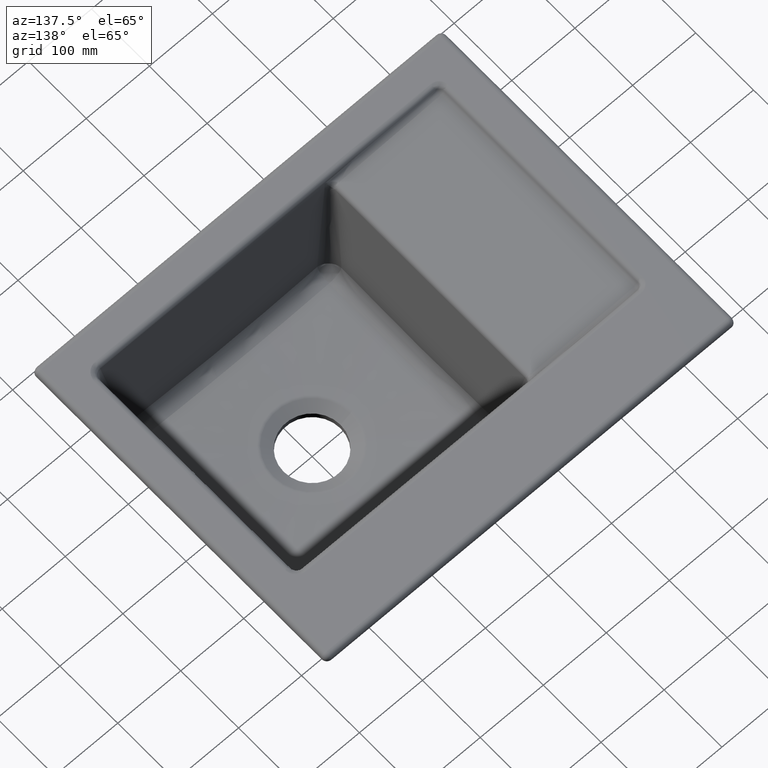
[diagram: clean part render]
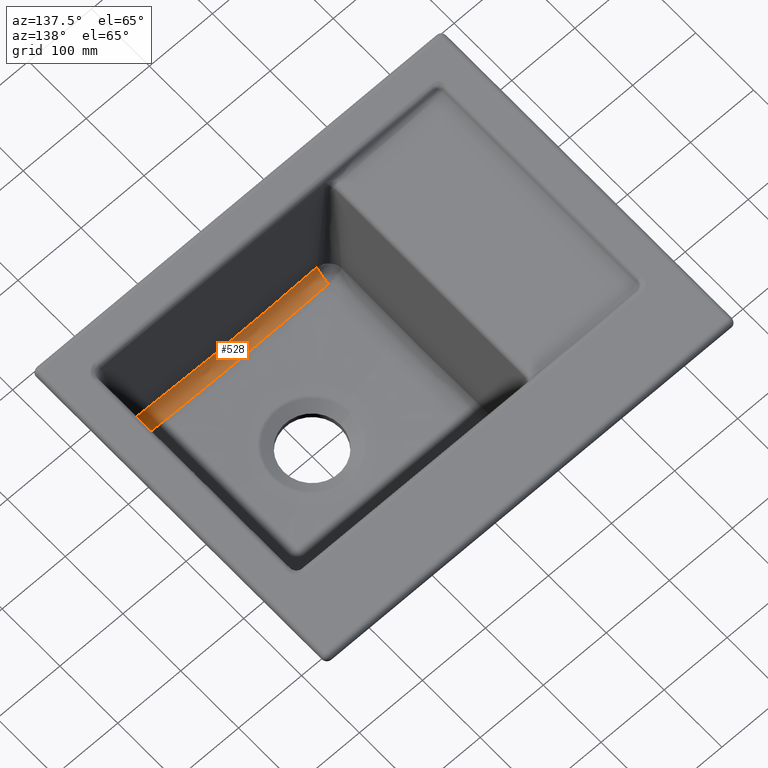
[diagram: same view with one face highlighted and labeled with its STEP entity id]
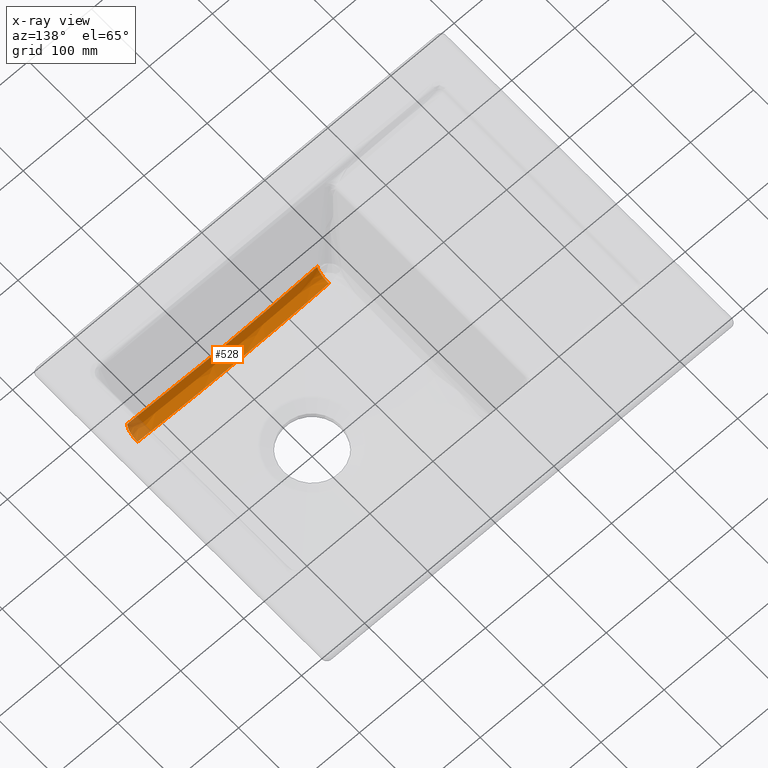
[diagram: x-ray of the same camera — body ghosted, the highlighted face saturated]
A machine part, auxiliary view. The second image highlights one B-rep face of the part: STEP entity #528.
The next image is the same camera in x-ray: the body ghosted, the highlighted face saturated — about 6% of this face is hidden behind the body in this view.
In plain terms, the highlighted face is a freeform B-spline surface patch.
Its self-contained STEP definition (entity closure, byte-faithful):
#338=(
BOUNDED_SURFACE()
B_SPLINE_SURFACE(3,2,((#9870,#9871,#9872),(#9873,#9874,#9875),(#9876,#9877,
#9878),(#9879,#9880,#9881),(#9882,#9883,#9884),(#9885,#9886,#9887),(#9888,
#9889,#9890),(#9891,#9892,#9893),(#9894,#9895,#9896),(#9897,#9898,#9899)),
 .UNSPECIFIED.,.F.,.F.,.F.)
B_SPLINE_SURFACE_WITH_KNOTS((4,2,2,2,4),(3,3),(0.,0.25,0.5,0.75,1.),(0.,
1.),.UNSPECIFIED.)
GEOMETRIC_REPRESENTATION_ITEM()
RATIONAL_B_SPLINE_SURFACE(((1.,0.758517824999186,1.),(1.,0.759891353912597,
1.),(1.,0.761625557138532,1.),(1.,0.764752627332512,1.),(1.,0.76605021280717,
1.),(1.,0.766038630508355,1.),(1.,0.764733148933172,1.),(1.,0.761604817532976,
1.),(1.,0.759873854202334,1.),(1.,0.758502411422207,1.)))
REPRESENTATION_ITEM('')
SURFACE()
);
#454=(
BOUNDED_CURVE()
B_SPLINE_CURVE(2,(#9773,#9774,#9775),.UNSPECIFIED.,.F.,.F.)
B_SPLINE_CURVE_WITH_KNOTS((3,3),(0.,1.),.UNSPECIFIED.)
CURVE()
GEOMETRIC_REPRESENTATION_ITEM()
RATIONAL_B_SPLINE_CURVE((1.,0.758502411423177,1.))
REPRESENTATION_ITEM('')
);
#528=ADVANCED_FACE('',(#816),#338,.T.);
#816=FACE_OUTER_BOUND('',#1085,.T.);
#1085=EDGE_LOOP('',(#2000,#2001,#2002,#2003));
#1335=B_SPLINE_CURVE_WITH_KNOTS('',3,(#5498,#5499,#5500,#5501,#5502,#5503,
#5504,#5505,#5506,#5507,#5508,#5509,#5510,#5511,#5512,#5513,#5514,#5515,
#5516,#5517,#5518,#5519,#5520,#5521,#5522,#5523,#5524,#5525),
 .UNSPECIFIED.,.F.,.F.,(4,2,1,1,1,1,1,2,2,2,2,1,1,1,1,1,2,2,4),(0.,0.125000000000002,
0.187500000000003,0.218750000000003,0.234375000000004,0.242187500000004,
0.246093750000004,0.248046875000004,0.250000000000004,0.500000000000008,
0.62500000000001,0.687500000000011,0.718750000000012,0.734375000000012,
0.742187500000012,0.746093750000012,0.748046875000012,0.750000000000012,
1.),.UNSPECIFIED.);
#1388=B_SPLINE_CURVE_WITH_KNOTS('',3,(#7771,#7772,#7773,#7774,#7775,#7776,
#7777,#7778,#7779,#7780,#7781,#7782,#7783,#7784,#7785,#7786,#7787,#7788,
#7789,#7790,#7791,#7792,#7793,#7794,#7795,#7796,#7797,#7798,#7799,#7800,
#7801,#7802,#7803,#7804,#7805,#7806,#7807,#7808,#7809,#7810,#7811,#7812,
#7813,#7814,#7815,#7816,#7817,#7818),.UNSPECIFIED.,.F.,.F.,(4,2,2,2,2,1,
2,2,2,2,2,2,2,2,2,2,2,2,2,2,1,2,2,2,4),(0.,0.125000000000004,0.187500000000006,
0.218750000000007,0.234375000000007,0.242187500000007,0.246093750000007,
0.250000000000007,0.312500000000008,0.343750000000008,0.359375000000008,
0.375000000000008,0.500000000000009,0.562500000000009,0.593750000000009,
0.609375000000009,0.625000000000009,0.687500000000009,0.718750000000009,
0.734375000000009,0.742187500000009,0.746093750000009,0.750000000000009,
0.875000000000005,1.),.UNSPECIFIED.);
#1524=B_SPLINE_CURVE_WITH_KNOTS('',3,(#9860,#9861,#9862,#9863,#9864,#9865,
#9866,#9867,#9868,#9869),.UNSPECIFIED.,.F.,.F.,(4,2,2,2,4),(0.,0.25,0.5,
0.75,1.),.UNSPECIFIED.);
#2000=ORIENTED_EDGE('',*,*,#3487,.T.);
#2001=ORIENTED_EDGE('',*,*,#3314,.F.);
#2002=ORIENTED_EDGE('',*,*,#3488,.F.);
#2003=ORIENTED_EDGE('',*,*,#3233,.F.);
#2885=VERTEX_POINT('',#5497);
#2886=VERTEX_POINT('',#5526);
#2958=VERTEX_POINT('',#7770);
#2959=VERTEX_POINT('',#7819);
#3233=EDGE_CURVE('',#2885,#2886,#1335,.T.);
#3314=EDGE_CURVE('',#2958,#2959,#1388,.T.);
#3487=EDGE_CURVE('',#2885,#2959,#454,.T.);
#3488=EDGE_CURVE('',#2886,#2958,#1524,.T.);
#5497=CARTESIAN_POINT('',(150.322829124245,-156.170342212053,47.7927649802515));
#5498=CARTESIAN_POINT('',(150.322828956117,-156.17034254538,47.7927681361297));
#5499=CARTESIAN_POINT('',(135.983508527604,-156.034698829106,47.0431617658532));
#5500=CARTESIAN_POINT('',(122.546958013704,-155.916764212319,46.3895874512151));
#5501=CARTESIAN_POINT('',(103.746332955624,-155.764274488456,45.5532740627155));
#5502=CARTESIAN_POINT('',(94.6845704503536,-155.694137193547,45.1711293893301));
#5503=CARTESIAN_POINT('',(84.7049851871015,-155.622575671959,44.7883149735598));
#5504=CARTESIAN_POINT('',(79.8633112471943,-155.589311935223,44.6126630248028));
#5505=CARTESIAN_POINT('',(77.479504065186,-155.57330325837,44.5287758652063));
#5506=CARTESIAN_POINT('',(76.2968579351509,-155.565453971863,44.4878169891036));
#5507=CARTESIAN_POINT('',(75.7919933368538,-155.562123138061,44.4704741929944));
#5508=CARTESIAN_POINT('',(75.455857769945,-155.559909939222,44.4589592195737));
#5509=CARTESIAN_POINT('',(75.3312749435769,-155.559090734067,44.454699083882));
#5510=CARTESIAN_POINT('',(48.126272409555,-155.380688569375,43.5278983580373));
#5511=CARTESIAN_POINT('',(23.0127182193103,-155.271770337284,43.0667050946732));
#5512=CARTESIAN_POINT('',(-11.6898331184902,-155.20232724941,43.0625671303108));
#5513=CARTESIAN_POINT('',(-23.7471943650975,-155.192936356073,43.1762998823087));
#5514=CARTESIAN_POINT('',(-42.5679753173059,-155.200532693499,43.5195671204837));
#5515=CARTESIAN_POINT('',(-52.1620504853966,-155.20975286102,43.7343677671157));
#5516=CARTESIAN_POINT('',(-63.676579614796,-155.230241397106,44.0605108197226));
#5517=CARTESIAN_POINT('',(-69.5142036261421,-155.242950027826,44.2424679205768));
#5518=CARTESIAN_POINT('',(-72.4531053776445,-155.249924393452,44.3381678646416));
#5519=CARTESIAN_POINT('',(-73.9275786751584,-155.253567087325,44.3871981850834));
#5520=CARTESIAN_POINT('',(-74.5605720343046,-155.255161619268,44.4084641113605));
#5521=CARTESIAN_POINT('',(-74.9828067694858,-155.256232063719,44.4226976026123));
#5522=CARTESIAN_POINT('',(-75.2375170214292,-155.256882613276,44.431317835319));
#5523=CARTESIAN_POINT('',(-96.8944532751882,-155.312485822391,45.1663042551277));
#5524=CARTESIAN_POINT('',(-121.981534786251,-155.413318556954,46.2800895679766));
#5525=CARTESIAN_POINT('',(-150.666468239033,-155.570484221784,47.7783713430116));
#5526=CARTESIAN_POINT('',(-150.666467471902,-155.570484238144,47.7783714727355));
#7770=CARTESIAN_POINT('',(-151.702967509525,-136.613644403434,29.9176594945275));
#7771=CARTESIAN_POINT('',(-151.702967509525,-136.613644403434,29.9176594945277));
#7772=CARTESIAN_POINT('',(-137.794282747057,-136.5848475142,29.1935833835188));
#7773=CARTESIAN_POINT('',(-124.599950731303,-136.59229078819,28.5526875835698));
#7774=CARTESIAN_POINT('',(-105.738684843739,-136.588914939232,27.716114350236));
#7775=CARTESIAN_POINT('',(-99.6052376351019,-136.58721284045,27.4580516835564));
#7776=CARTESIAN_POINT('',(-90.6022064870592,-136.586915372708,27.1021503001844));
#7777=CARTESIAN_POINT('',(-87.6339270214931,-136.587246664062,26.9887152751683));
#7778=CARTESIAN_POINT('',(-83.2252266751105,-136.589059200903,26.826360891806));
#7779=CARTESIAN_POINT('',(-81.762937515493,-136.589883440005,26.7735424563789));
#7780=CARTESIAN_POINT('',(-79.5796663927305,-136.591533224162,26.6962643417787));
#7781=CARTESIAN_POINT('',(-78.4905706195961,-136.592461406957,26.6581126691137));
#7782=CARTESIAN_POINT('',(-77.4051352848382,-136.593559178041,26.6206920734014));
#7783=CARTESIAN_POINT('',(-76.6823080244477,-136.594330241427,26.5959074711382));
#7784=CARTESIAN_POINT('',(-76.3674707859413,-136.594680900208,26.585162434013));
#7785=CARTESIAN_POINT('',(-69.4518000216654,-136.60284060882,26.3506325960664));
#7786=CARTESIAN_POINT('',(-63.0805381344136,-136.609108641453,26.1561516514948));
#7787=CARTESIAN_POINT('',(-53.6425520992871,-136.624203010527,25.9038097654694));
#7788=CARTESIAN_POINT('',(-50.5161259362453,-136.630071162417,25.8262590585996));
#7789=CARTESIAN_POINT('',(-45.8427144414818,-136.639545700701,25.7197778810029));
#7790=CARTESIAN_POINT('',(-44.2876003288153,-136.64280210792,25.685924968922));
#7791=CARTESIAN_POINT('',(-41.1803912114526,-136.649223653619,25.6215007723296));
#7792=CARTESIAN_POINT('',(-39.6841254921601,-136.652285041452,25.5919703133795));
#7793=CARTESIAN_POINT('',(-25.2152798204399,-136.679336094664,25.3222286467839));
#7794=CARTESIAN_POINT('',(-12.8836262981698,-136.704899341315,25.2026382011271));
#7795=CARTESIAN_POINT('',(6.17247569941489,-136.742573030861,25.203522676432));
#7796=CARTESIAN_POINT('',(12.4304885566705,-136.745540635179,25.2338722412947));
#7797=CARTESIAN_POINT('',(21.8512428996191,-136.764414603432,25.3244786982304));
#7798=CARTESIAN_POINT('',(24.997052945931,-136.772475078735,25.3621945354826));
#7799=CARTESIAN_POINT('',(29.7448053162745,-136.785517964288,25.4300388187713));
#7800=CARTESIAN_POINT('',(31.332217981928,-136.789989702675,25.4545320011026));
#7801=CARTESIAN_POINT('',(34.5199985873989,-136.79850183443,25.5072752082354));
#7802=CARTESIAN_POINT('',(36.1762983249567,-136.802658623371,25.5365729124485));
#7803=CARTESIAN_POINT('',(43.9388216463122,-136.818880834874,25.6819767455727));
#7804=CARTESIAN_POINT('',(50.1552720712859,-136.829216702837,25.8245769527658));
#7805=CARTESIAN_POINT('',(59.5999761617392,-136.851760167245,26.0778929745958));
#7806=CARTESIAN_POINT('',(62.7679899743497,-136.860169201243,26.1689009337125));
#7807=CARTESIAN_POINT('',(67.5613412712148,-136.873567292363,26.3152668001478));
#7808=CARTESIAN_POINT('',(69.1659981158147,-136.878153758195,26.3656977435862));
#7809=CARTESIAN_POINT('',(71.584612232531,-136.885068129439,26.4438076406838));
#7810=CARTESIAN_POINT('',(72.7968250585657,-136.888533321996,26.4834784597177));
#7811=CARTESIAN_POINT('',(74.013630869917,-136.891977919441,26.524073084479));
#7812=CARTESIAN_POINT('',(74.8258805486515,-136.89426581595,26.5513414578149));
#7813=CARTESIAN_POINT('',(75.2789353892205,-136.895534710422,26.5666555881826));
#7814=CARTESIAN_POINT('',(87.1845463687734,-136.92867634578,26.9713074691359));
#7815=CARTESIAN_POINT('',(99.1426430178336,-136.982635413813,27.4469306073773));
#7816=CARTESIAN_POINT('',(124.309204073886,-137.087418209574,28.5646437548577));
#7817=CARTESIAN_POINT('',(137.514560073739,-137.132545629935,29.2067337640968));
#7818=CARTESIAN_POINT('',(151.435556934642,-137.216836574319,29.9320572088346));
#7819=CARTESIAN_POINT('',(151.435556934715,-137.216836565467,29.9320572084225));
#9773=CARTESIAN_POINT('',(150.322844481823,-156.170342692285,47.7927689477517));
#9774=CARTESIAN_POINT('',(151.231657691586,-154.380286327912,30.7273694318546));
#9775=CARTESIAN_POINT('',(151.435556916856,-137.216836574222,29.9320572079083));
#9860=CARTESIAN_POINT('',(-150.666463019511,-155.570484271662,47.7783717656778));
#9861=CARTESIAN_POINT('',(-150.790512681868,-155.323522539614,45.4286998101285));
#9862=CARTESIAN_POINT('',(-150.914525254442,-154.654798461481,43.1239810893294));
#9863=CARTESIAN_POINT('',(-151.147147611138,-152.556483440648,38.889325522391));
#9864=CARTESIAN_POINT('',(-151.255696269738,-151.127443866304,36.9605014048237));
#9865=CARTESIAN_POINT('',(-151.443851359986,-147.686237427939,33.7182733485854));
#9866=CARTESIAN_POINT('',(-151.523408350649,-145.674974800088,32.4057213610915));
#9867=CARTESIAN_POINT('',(-151.643647558867,-141.319733409366,30.5599798246235));
#9868=CARTESIAN_POINT('',(-151.684298181502,-138.976899061068,30.0272752759786));
#9869=CARTESIAN_POINT('',(-151.702967506846,-136.613644408837,29.9176594946411));
#9870=CARTESIAN_POINT('',(-150.666468239025,-155.570484221822,47.7783713430079));
#9871=CARTESIAN_POINT('',(-151.567385293667,-153.776910542117,30.7137503427125));
#9872=CARTESIAN_POINT('',(-151.702969596322,-136.613644407757,29.9176596031645));
#9873=CARTESIAN_POINT('',(-125.59089497321,-155.433094363983,46.4686150401966));
#9874=CARTESIAN_POINT('',(-126.466529071005,-153.646912457136,29.4771345633413));
#9875=CARTESIAN_POINT('',(-126.544287062586,-136.561555620317,28.6079167207047));
#9876=CARTESIAN_POINT('',(-100.509608491627,-155.322233812504,45.2933996232752));
#9877=CARTESIAN_POINT('',(-101.292617448056,-153.544668605997,28.3866223646507));
#9878=CARTESIAN_POINT('',(-101.347386356781,-136.554692405499,27.4326878876773));
#9879=CARTESIAN_POINT('',(-50.3207282920022,-155.192023580113,43.5772976085726));
#9880=CARTESIAN_POINT('',(-50.8010290889302,-153.430673824147,26.8255700174403));
#9881=CARTESIAN_POINT('',(-50.8008977383369,-136.616368281127,25.7165858644836));
#9882=CARTESIAN_POINT('',(-25.2126206494305,-155.175325473283,43.0615121548419));
#9883=CARTESIAN_POINT('',(-25.4287113504544,-153.420725392323,26.3717359837524));
#9884=CARTESIAN_POINT('',(-25.4391931389424,-136.679884620988,25.2008004359492));
#9885=CARTESIAN_POINT('',(24.9679539399438,-155.27562434821,43.0663807453339));
#9886=CARTESIAN_POINT('',(25.1946774312271,-153.521846619592,26.376036620281));
#9887=CARTESIAN_POINT('',(25.271926285218,-136.780526467633,25.2056689845398));
#9888=CARTESIAN_POINT('',(50.0476623492068,-155.39254398021,43.5862716977217));
#9889=CARTESIAN_POINT('',(50.5374361785304,-153.633024469188,26.8335892165977));
#9890=CARTESIAN_POINT('',(50.6045913829919,-136.817754576739,25.7255599642994));
#9891=CARTESIAN_POINT('',(100.193127822318,-155.722636350705,45.3065189217883));
#9892=CARTESIAN_POINT('',(100.984549431743,-153.948095174099,28.3987119754861));
#9893=CARTESIAN_POINT('',(101.107070554614,-136.957309254211,27.4458071755238));
#9894=CARTESIAN_POINT('',(125.259507087481,-155.933254462913,46.4825509721905));
#9895=CARTESIAN_POINT('',(126.143145368321,-154.150478429394,29.4901764329929));
#9896=CARTESIAN_POINT('',(126.2890342558,-137.064576875317,28.6218520690678));
#9897=CARTESIAN_POINT('',(150.32284449955,-156.170342692453,47.7927689486784));
#9898=CARTESIAN_POINT('',(151.231657709363,-154.380286328075,30.7273694327312));
#9899=CARTESIAN_POINT('',(151.435556934642,-137.21683657433,29.932057208835));